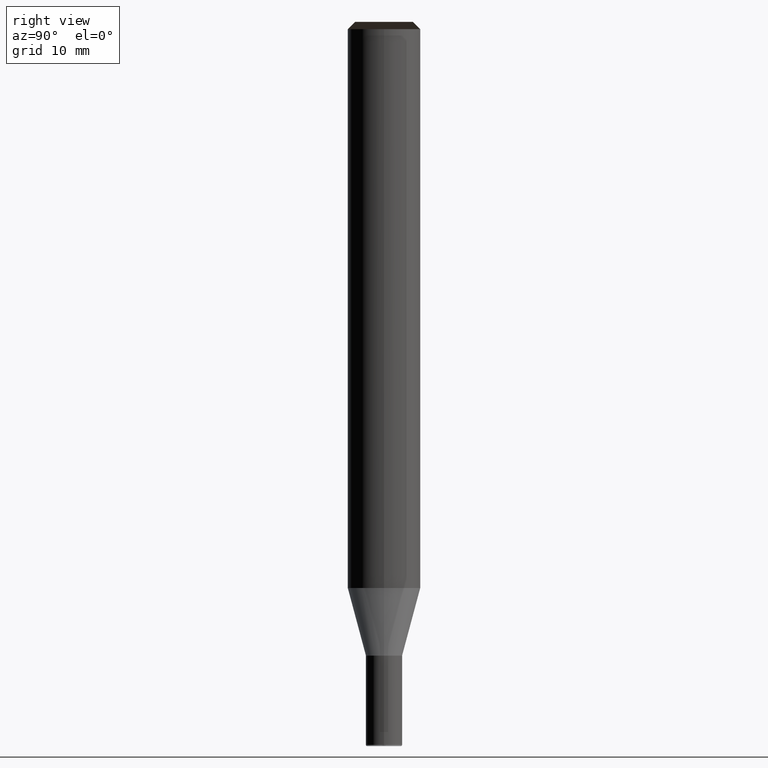
[diagram: clean part render]
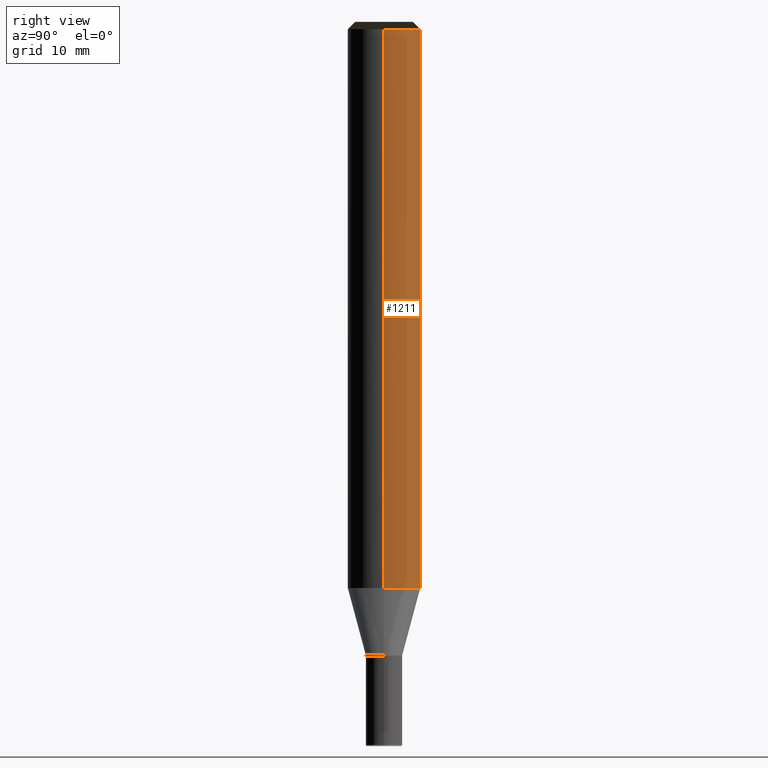
[diagram: same view with one face highlighted and labeled with its STEP entity id]
A machine part, right view. The second image highlights one B-rep face of the part: STEP entity #1211.
In plain terms, the highlighted face is a freeform B-spline surface patch.
Its self-contained STEP definition (entity closure, byte-faithful):
#974=CARTESIAN_POINT('',(3.0,0.0,-0.0));
#975=CARTESIAN_POINT('',(3.0,3.0,-0.0));
#976=CARTESIAN_POINT('',(0.0,3.0,-0.0));
#977=CARTESIAN_POINT('',(-3.0,3.0,-0.0));
#978=CARTESIAN_POINT('',(-3.0,0.0,-0.0));
#979=CARTESIAN_POINT('',(3.0,0.0,46.301923788647));
#980=CARTESIAN_POINT('',(3.0,3.0,46.301923788647));
#981=CARTESIAN_POINT('',(0.0,3.0,46.301923788647));
#982=CARTESIAN_POINT('',(-3.0,3.0,46.301923788647));
#983=CARTESIAN_POINT('',(-3.0,0.0,46.301923788647));
#1192=(
BOUNDED_SURFACE()
B_SPLINE_SURFACE(1,2,(
(#974,#975,#976,#977,#978),
(#979,#980,#981,#982,#983)
), .UNSPECIFIED.,.F.,.F.,.F.)
B_SPLINE_SURFACE_WITH_KNOTS((2,2),(3,2,3),(
0.0,1.0),(
0.0,0.5,1.0), .UNSPECIFIED.)
GEOMETRIC_REPRESENTATION_ITEM()
RATIONAL_B_SPLINE_SURFACE(((1.0,0.707106781187,1.0,0.707106781187,1.0),
(1.0,0.707106781187,1.0,0.707106781187,1.0)
))
REPRESENTATION_ITEM('')
SURFACE()
);
#1193=(
BOUNDED_CURVE()
B_SPLINE_CURVE(2,(#979,#980,#981,#982,#983),.UNSPECIFIED.,.F.,.F.)
B_SPLINE_CURVE_WITH_KNOTS((3,2,3),
(0.0,0.5,1.0),.UNSPECIFIED.)
CURVE()
GEOMETRIC_REPRESENTATION_ITEM()
RATIONAL_B_SPLINE_CURVE((1.0,0.707106781187,1.0,0.707106781187,1.0))
REPRESENTATION_ITEM('')
);
#1194=(
BOUNDED_CURVE()
B_SPLINE_CURVE(1,(#983,#978),.UNSPECIFIED.,.F.,.F.)
B_SPLINE_CURVE_WITH_KNOTS((2,2),
(0.0,1.0),.UNSPECIFIED.)
CURVE()
GEOMETRIC_REPRESENTATION_ITEM()
RATIONAL_B_SPLINE_CURVE((1.0,1.0))
REPRESENTATION_ITEM('')
);
#1195=(
BOUNDED_CURVE()
B_SPLINE_CURVE(2,(#978,#977,#976,#975,#974),.UNSPECIFIED.,.F.,.F.)
B_SPLINE_CURVE_WITH_KNOTS((3,2,3),
(0.0,0.5,1.0),.UNSPECIFIED.)
CURVE()
GEOMETRIC_REPRESENTATION_ITEM()
RATIONAL_B_SPLINE_CURVE((1.0,0.707106781187,1.0,0.707106781187,1.0))
REPRESENTATION_ITEM('')
);
#1196=(
BOUNDED_CURVE()
B_SPLINE_CURVE(1,(#974,#979),.UNSPECIFIED.,.F.,.F.)
B_SPLINE_CURVE_WITH_KNOTS((2,2),
(0.0,1.0),.UNSPECIFIED.)
CURVE()
GEOMETRIC_REPRESENTATION_ITEM()
RATIONAL_B_SPLINE_CURVE((1.0,1.0))
REPRESENTATION_ITEM('')
);
#1197=VERTEX_POINT('',#974);
#1198=VERTEX_POINT('',#978);
#1199=VERTEX_POINT('',#979);
#1200=VERTEX_POINT('',#983);
#1201=EDGE_CURVE('',#1199,#1200,#1193,.T.);
#1202=EDGE_CURVE('',#1200,#1198,#1194,.T.);
#1203=EDGE_CURVE('',#1198,#1197,#1195,.T.);
#1204=EDGE_CURVE('',#1197,#1199,#1196,.T.);
#1205=ORIENTED_EDGE('',*,*,#1201,.T.);
#1206=ORIENTED_EDGE('',*,*,#1202,.T.);
#1207=ORIENTED_EDGE('',*,*,#1203,.T.);
#1208=ORIENTED_EDGE('',*,*,#1204,.T.);
#1209=EDGE_LOOP('',(#1205,#1206,#1207,#1208));
#1210=FACE_OUTER_BOUND('',#1209,.T.);
#1211=ADVANCED_FACE('',(#1210),#1192,.T.);